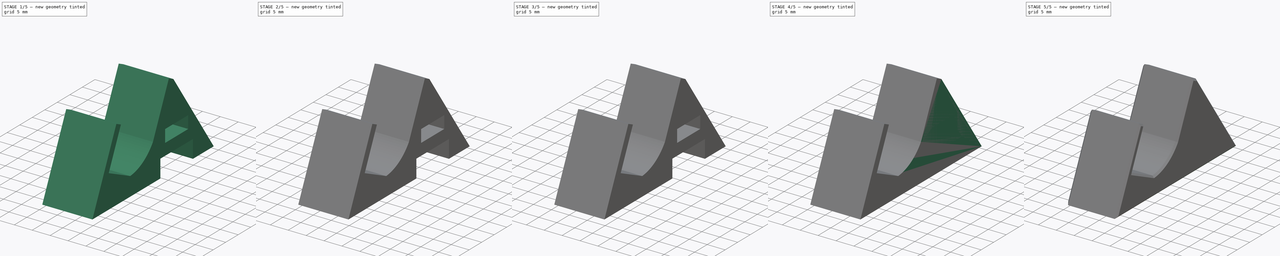
[diagram: build sequence overview — one tinted view per stage of 5, left to right]
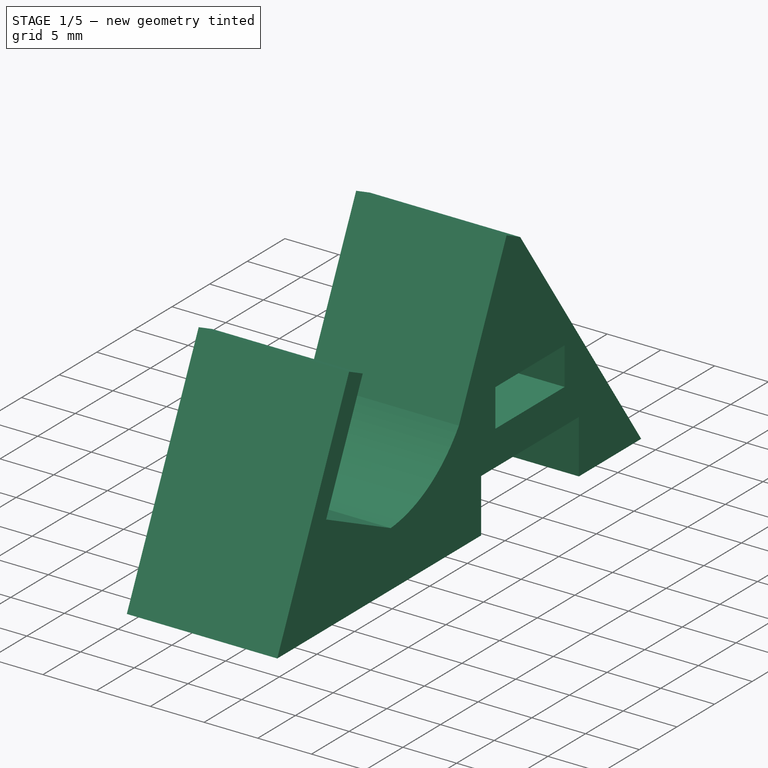
[diagram: stage 1 of 5 — iso view after this stage's code; geometry added in this stage tinted green]
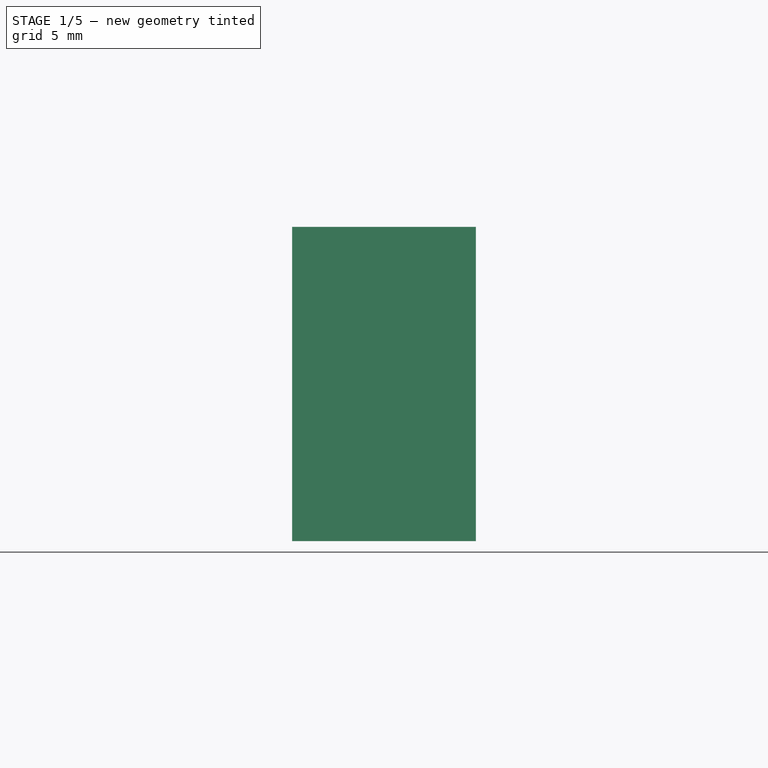
[diagram: stage 1 of 5 — front view after this stage's code; geometry added in this stage tinted green]
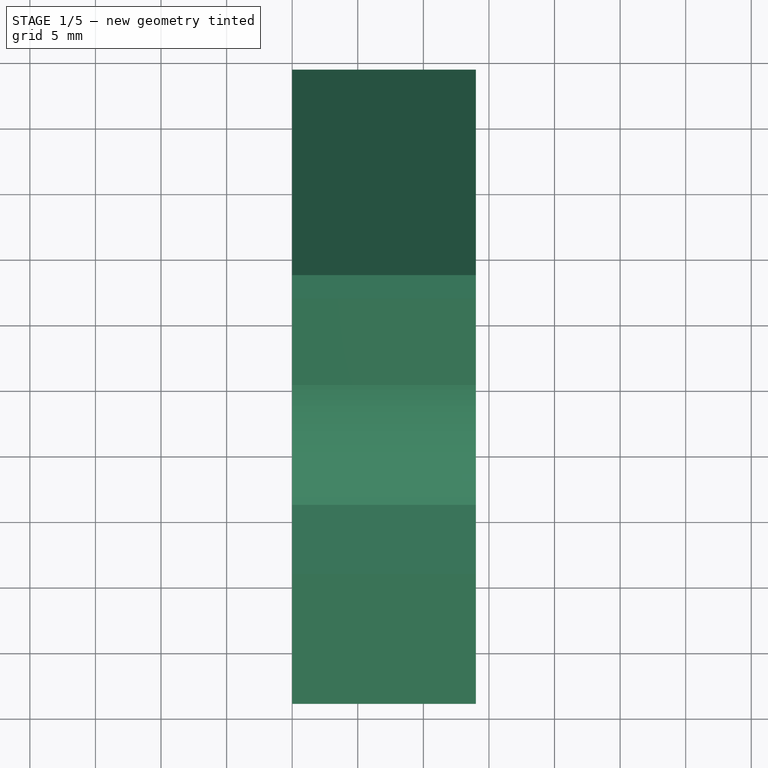
[diagram: stage 1 of 5 — top view after this stage's code; geometry added in this stage tinted green]
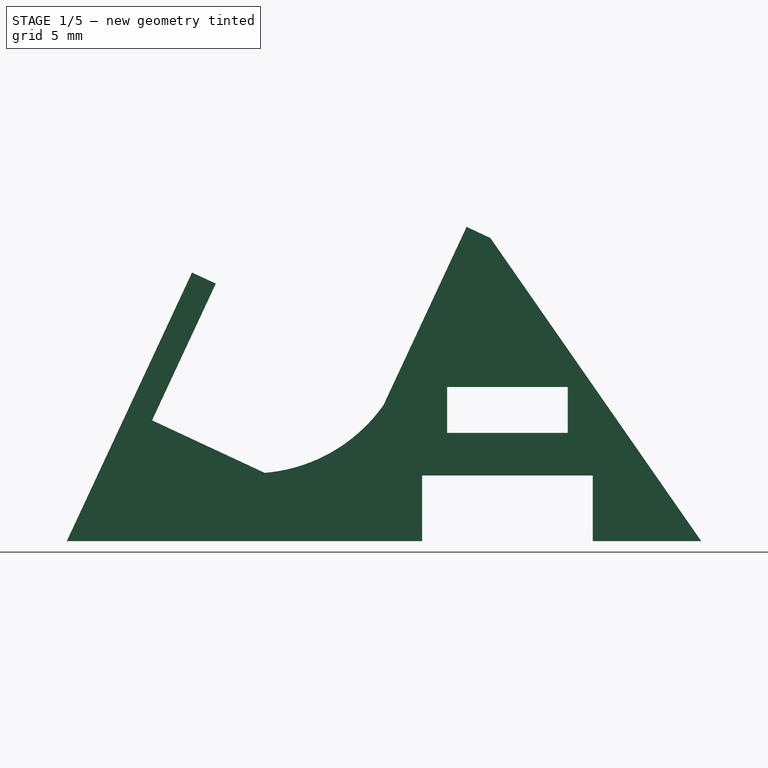
[diagram: stage 1 of 5 — right view after this stage's code; geometry added in this stage tinted green]
FCSTD DOCUMENT  (FreeCAD 1.0R39285 (Git))
Label: Vita 2K Kit
License: All rights reserved
LicenseURL: http://en.wikipedia.org/wiki/All_rights_reserved
objects: Sketcher::SketchObject×10, PartDesign::Pad×7, PartDesign::Pocket×6, PartDesign::Body×4, Part::Part2DObjectPython×3, PartDesign::FeatureBase×3, PartDesign::Fillet×3, PartDesign::Chamfer×3, App::Part×1
note: 90 computed .brp shape members not serialized (recipe doc carries the construction recipe); baked Part::Feature solids carry a one-line shape summary decoded from their .brp

FEATURE [Sketcher::SketchObject] Sketch
  ArcFitTolerance = 0
  AttachmentSupport = -> [YZ_Plane001]
  FullyConstrained = true
  MakeInternals = false
  MapMode = 5
  Placement = pos=(0,0,0) rot=(0.57735,0.57735,0.57735;2.0944rad)
  sketch-geometry (12):
    g0: LineSegment StartX=0 StartY=0 StartZ=0 EndX=0 EndY=13.5 EndZ=0
    g1: LineSegment StartX=0 StartY=13.5 StartZ=0 EndX=2 EndY=13.5 EndZ=0
    g2: LineSegment StartX=2 StartY=13.5 StartZ=0 EndX=2 EndY=2 EndZ=0
    g3: LineSegment [constr] StartX=2 StartY=2 StartZ=0 EndX=17.5 EndY=2 EndZ=0
    g4: LineSegment [constr] StartX=17.5 StartY=2 StartZ=0 EndX=17.5 EndY=25.5 EndZ=0
    g5: LineSegment StartX=17.5 StartY=25.5 StartZ=0 EndX=19.5 EndY=25.5 EndZ=0
    g6: LineSegment StartX=19.5 StartY=25.5 StartZ=0 EndX=19.5 EndY=0 EndZ=0
    g7: LineSegment StartX=19.5 StartY=0 StartZ=0 EndX=0 EndY=0 EndZ=0
    g8: LineSegment [constr] StartX=2 StartY=2 StartZ=0 EndX=2 EndY=0 EndZ=0
    g9: LineSegment StartX=2 StartY=2 StartZ=0 EndX=11.475 EndY=2 EndZ=0
    g10: LineSegment StartX=17.5 StartY=25.5 StartZ=0 EndX=17.5 EndY=10.5 EndZ=0
    g11: ArcOfCircle CenterX=5.36295 CenterY=12.7177 CenterZ=0 NormalX=0 NormalY=0 NormalZ=1 AngleXU=0 Radius=12.338 StartAngle=5.23067 EndAngle=6.10246
  constraints (35):
    c: Coincident(g0,g-1)
    c: PointOnObject(g0,g-2)
    c: Coincident(g1,g0)
    c: Horizontal(g1)
    c: Coincident(g2,g1)
    c: Vertical(g2)
    c: Coincident(g3,g2)
    c: Horizontal(g3)
    c: Coincident(g4,g3)
    c: Vertical(g4)
    c: Coincident(g5,g4)
    c: Horizontal(g5)
    c: Coincident(g6,g5)
    c: PointOnObject(g6,g-1)
    c: Vertical(g6)
    c: Coincident(g7,g6)
    c: Coincident(g7,g0)
    c: Coincident(g8,g2)
    c: PointOnObject(g8,g7)
    c: Vertical(g8)
    c: Equal(g1,g8)
    c: Equal(g8,g5)
    c: Distance(g1) = 2
    c: Distance(g2) = 11.5
    c: Distance(g4) = 23.5
    c: Distance(g3) = 15.5
    c: Coincident(g9,g2)
    c: PointOnObject(g9,g3)
    c: Coincident(g10,g5)
    c: PointOnObject(g10,g4)
    c: Coincident(g11,g9)
    c: Coincident(g11,g10)
    c: Distance(g9) = 9.475
    c: Distance(g10) = 15
    c: Radius(g11) = 12.338
FEATURE [PartDesign::Pad] Pad
  Direction = (1,0,0)
  Length = 14
  Length2 = 10
  Placement = pos=(0,0,0) rot=(0.57735,0.57735,0.57735;2.0944rad)
  Profile = -> Sketch
  ReferenceAxis = -> Sketch [N_Axis]
  Suppressed = false
  Type = 0
FEATURE [Part::Part2DObjectPython] ShapeString  label="V2K"  # Draft 2D object (typed FeaturePython)
  FontFile = <path> Bit Git Repro/16BitVirtualStudiosDesigns/Font/OpenSans-Regular.ttf
  Fuse = false
  Justification = 6
  JustificationReference = 0
  KeepLeftMargin = true
  MakeFace = true
  ObliqueAngle = 0
  Placement = pos=(10.89,7,6.19) rot=(0,0.707107,0.707107;3.14159rad)
  ScaleToSize = false
  Size = 4
  String = V2K
  Tracking = 0
FEATURE [Part::Part2DObjectPython] ShapeString001  label="L"  # Draft 2D object (typed FeaturePython)
  FontFile = <path> Bit Git Repro/16BitVirtualStudiosDesigns/Font/OpenSans-Regular.ttf
  Fuse = false
  Justification = 6
  JustificationReference = 0
  KeepLeftMargin = true
  MakeFace = true
  ObliqueAngle = 0
  Placement = pos=(53.72,6.03,-14) rot=(1,0,0;3.14159rad)
  ScaleToSize = false
  Size = 10
  String = L
  Tracking = 0
FEATURE [Part::Part2DObjectPython] ShapeString002  label="R"  # Draft 2D object (typed FeaturePython)
  FontFile = <path> Bit Git Repro/16BitVirtualStudiosDesigns/Font/OpenSans-Regular.ttf
  Fuse = false
  Justification = 6
  JustificationReference = 0
  KeepLeftMargin = true
  MakeFace = true
  ObliqueAngle = 0
  Placement = pos=(53.15,6.03,-16) rot=(1,0,0;3.14159rad)
  ScaleToSize = false
  Size = 10
  String = R
  Tracking = 0
FEATURE [Sketcher::SketchObject] Sketch001  label="Vita In"
  ArcFitTolerance = 0
  FullyConstrained = false
  MakeInternals = false
  Placement = pos=(62,16.69,-7) rot=(0,0,1;3.14159rad)
  sketch-geometry (22):
    g0: BSplineCurve PolesCount=3 KnotsCount=2 Degree=2 IsPeriodic=0
    g1: BSplineCurve PolesCount=2 KnotsCount=2 Degree=1 IsPeriodic=0
    g2: BSplineCurve PolesCount=3 KnotsCount=2 Degree=2 IsPeriodic=0
    g3: BSplineCurve PolesCount=2 KnotsCount=2 Degree=1 IsPeriodic=0
    g4: BSplineCurve PolesCount=3 KnotsCount=2 Degree=2 IsPeriodic=0
    g5: BSplineCurve PolesCount=3 KnotsCount=2 Degree=2 IsPeriodic=0
    g6: BSplineCurve PolesCount=2 KnotsCount=2 Degree=1 IsPeriodic=0
    g7: BSplineCurve PolesCount=3 KnotsCount=2 Degree=2 IsPeriodic=0
    g8: BSplineCurve PolesCount=3 KnotsCount=2 Degree=2 IsPeriodic=0
    g9: BSplineCurve PolesCount=2 KnotsCount=2 Degree=1 IsPeriodic=0
    g10: BSplineCurve PolesCount=3 KnotsCount=2 Degree=2 IsPeriodic=0
    g11: BSplineCurve PolesCount=2 KnotsCount=2 Degree=1 IsPeriodic=0
    g12: BSplineCurve PolesCount=3 KnotsCount=2 Degree=2 IsPeriodic=0
    g13: BSplineCurve PolesCount=3 KnotsCount=2 Degree=2 IsPeriodic=0
    g14: BSplineCurve PolesCount=2 KnotsCount=2 Degree=1 IsPeriodic=0
    g15: BSplineCurve PolesCount=3 KnotsCount=2 Degree=2 IsPeriodic=0
    g16: BSplineCurve PolesCount=7 KnotsCount=4 Degree=2 IsPeriodic=0
    g17: BSplineCurve PolesCount=7 KnotsCount=4 Degree=2 IsPeriodic=0
    g18: BSplineCurve PolesCount=2 KnotsCount=2 Degree=1 IsPeriodic=0
    g19: BSplineCurve PolesCount=2 KnotsCount=2 Degree=1 IsPeriodic=0
    g20: BSplineCurve PolesCount=2 KnotsCount=2 Degree=1 IsPeriodic=0
    g21: BSplineCurve PolesCount=2 KnotsCount=2 Degree=1 IsPeriodic=0
  constraints (20):
    c: Coincident(g0,g1)
    c: Coincident(g1,g2)
    c: Coincident(g2,g3)
    c: Coincident(g3,g4)
    c: Coincident(g4,g5)
    c: Coincident(g5,g6)
    c: Coincident(g6,g7)
    c: Coincident(g7,g8)
    c: Coincident(g8,g9)
    c: Coincident(g9,g10)
    c: Coincident(g10,g11)
    c: Coincident(g11,g12)
    c: Coincident(g12,g13)
    c: Coincident(g13,g14)
    c: Coincident(g14,g15)
    c: Coincident(g15,g0)
    c: Coincident(g18,g19)
    c: Coincident(g19,g20)
    c: Coincident(g20,g21)
    c: Coincident(g21,g18)
FEATURE [Sketcher::SketchObject] Sketch002  label="Vita Out"
  ArcFitTolerance = 0
  FullyConstrained = false
  MakeInternals = false
  Placement = pos=(62,16.69,-15) rot=(0,0,1;3.14159rad)
  sketch-geometry (4):
    g0: BSplineCurve PolesCount=2 KnotsCount=2 Degree=1 IsPeriodic=0
    g1: BSplineCurve PolesCount=5 KnotsCount=3 Degree=2 IsPeriodic=0
    g2: BSplineCurve PolesCount=2 KnotsCount=2 Degree=1 IsPeriodic=0
    g3: BSplineCurve PolesCount=5 KnotsCount=3 Degree=2 IsPeriodic=0
  constraints (4):
    c: Coincident(g0,g1)
    c: Coincident(g1,g2)
    c: Coincident(g2,g3)
    c: Coincident(g3,g0)
FEATURE [PartDesign::Pocket] Pocket
  BaseFeature = -> Pad
  Direction = (-1e-16,-1,2e-16)
  Length = 0
  Length2 = 5
  Offset = 0.2
  Placement = pos=(0,0,0) rot=(0.57735,0.57735,0.57735;2.0944rad)
  Profile = -> ShapeString
  ReferenceAxis = -> ShapeString [N_Axis]
  Refine = true
  Suppressed = false
  Type = 3
  UpToFace = -> Pad [Face6]
FEATURE [PartDesign::Body] Body  label="Profile"
  AllowCompound = false
  Group = -> [Sketch,Pad,ShapeString,Pocket]
  Origin = -> Origin001
  Tip = -> Pocket
FEATURE [PartDesign::FeatureBase] Clone
  BaseFeature = -> Body
  Placement = pos=(50,0,0) rot=(-1,0,0;0.436332rad)
  Suppressed = false
FEATURE [Sketcher::SketchObject] Sketch003
  ArcFitTolerance = 0
  AttachmentSupport = -> [Clone]
  ExternalGeometry = -> [Clone]
  FullyConstrained = true
  MakeInternals = false
  MapMode = 5
  Placement = pos=(64,-1.26e-14,2.4e-15) rot=(0.473306,0.742942,0.473306;1.86366rad)
  sketch-geometry (19):
    g0: LineSegment StartX=19.5 StartY=25.5 StartZ=0 EndX=19.5 EndY=2 EndZ=0
    g1: LineSegment StartX=19.5 StartY=2 StartZ=0 EndX=7.1e-15 EndY=2 EndZ=0
    g2: LineSegment StartX=7.1e-15 StartY=2 StartZ=0 EndX=0 EndY=-9.093 EndZ=0
    g3: LineSegment StartX=0 StartY=-9.093 StartZ=0 EndX=24.5564 EndY=2.35784 EndZ=0
    g4: LineSegment StartX=24.5564 StartY=2.35784 StartZ=0 EndX=22.4433 EndY=6.88937 EndZ=0
    g5: LineSegment StartX=22.4433 StartY=6.88937 StartZ=0 EndX=34.2253 EndY=12.3834 EndZ=0
    g6: LineSegment StartX=34.2253 StartY=12.3834 StartZ=0 EndX=36.3384 EndY=7.85187 EndZ=0
    g7: LineSegment StartX=36.3384 StartY=7.85187 StartZ=0 EndX=43.8363 EndY=11.3482 EndZ=0
    g8: LineSegment StartX=43.8363 StartY=11.3482 StartZ=0 EndX=19.5 EndY=25.5 EndZ=0
    g9: LineSegment StartX=22.7918 StartY=10.6378 StartZ=0 EndX=31.1298 EndY=14.5259 EndZ=0
    g10: LineSegment StartX=31.1298 StartY=14.5259 StartZ=0 EndX=29.6506 EndY=17.698 EndZ=0
    g11: LineSegment StartX=29.6506 StartY=17.698 StartZ=0 EndX=21.3126 EndY=13.8099 EndZ=0
    g12: LineSegment StartX=21.3126 StartY=13.8099 StartZ=0 EndX=22.7918 EndY=10.6378 EndZ=0
    g13: LineSegment [constr] StartX=24.5564 StartY=2.35784 StartZ=0 EndX=36.3384 EndY=7.85187 EndZ=0
    g14: LineSegment [constr] StartX=22.4433 StartY=6.88937 StartZ=0 EndX=19.5 EndY=5.51689 EndZ=0
    g15: LineSegment [constr] StartX=34.2253 StartY=12.3834 StartZ=0 EndX=38.5712 EndY=14.4099 EndZ=0
    g16: LineSegment [constr] StartX=26.9608 StartY=12.5819 StartZ=0 EndX=28.3343 EndY=9.63639 EndZ=0
    g17: LineSegment [constr] StartX=29.6506 StartY=17.698 StartZ=0 EndX=31.4633 EndY=18.5433 EndZ=0
    g18: LineSegment [constr] StartX=21.3126 StartY=13.8099 StartZ=0 EndX=19.5 EndY=12.9647 EndZ=0
  constraints (54):
    c: Coincident(g-4,g0)
    c: PointOnObject(g0,g-4)
    c: Coincident(g0,g1)
    c: PointOnObject(g1,g-5)
    c: Horizontal(g1)
    c: Coincident(g1,g2)
    c: PointOnObject(g2,g-2)
    c: Coincident(g2,g3)
    c: Coincident(g3,g4)
    c: Coincident(g4,g5)
    c: Coincident(g5,g6)
    c: Coincident(g6,g7)
    c: Coincident(g7,g8)
    c: Coincident(g8,g0)
    c: Coincident(g9,g10)
    c: Coincident(g10,g11)
    c: Coincident(g11,g12)
    c: Coincident(g12,g9)
    c: Parallel(g11,g9)
    c: Parallel(g9,g5)
    c: Parallel(g5,g7)
    c: Parallel(g5,g3)
    c: Perpendicular(g3,g4)
    c: Perpendicular(g7,g6)
    c: Perpendicular(g9,g10)
    c: Perpendicular(g9,g12)
    c: PointOnObject(g-3,g1)
    c: PointOnObject(g-4,g3)
    c: Angle(g3,g2) = 1.13446
    c: Coincident(g13,g3)
    c: Coincident(g13,g6)
    c: Parallel(g13,g3)
    c: Coincident(g14,g4)
    c: PointOnObject(g14,g0)
    c: Coincident(g15,g5)
    c: PointOnObject(g15,g8)
    c: Coincident(g17,g10)
    c: Coincident(g18,g11)
    c: PointOnObject(g18,g0)
    c: PointOnObject(g17,g8)
    c: Parallel(g17,g11)
    c: Parallel(g14,g5)
    c: Parallel(g5,g15)
    c: Parallel(g11,g18)
    c: Equal(g17,g18)
    c: Symmetric(g9,g9,g16)
    c: Symmetric(g5,g4,g16)
    c: Perpendicular(g5,g16)
    c: Distance(g5) = 13
    c: Distance(g6) = 5
    c: Distance(g16) = 3.25
    c: Distance(g10) = 3.5
    c: Distance(g11) = 9.2
    c: Distance(g17) = 2
FEATURE [PartDesign::Pad] Pad001
  BaseFeature = -> Clone
  Direction = (1,-1e-16,-1e-16)
  Length = 14
  Length2 = 10
  Placement = pos=(50,0,0) rot=(-1,0,0;0.436332rad)
  Profile = -> Sketch003
  ReferenceAxis = -> Sketch003 [N_Axis]
  Refine = true
  Reversed = true
  Suppressed = false
  Type = 0
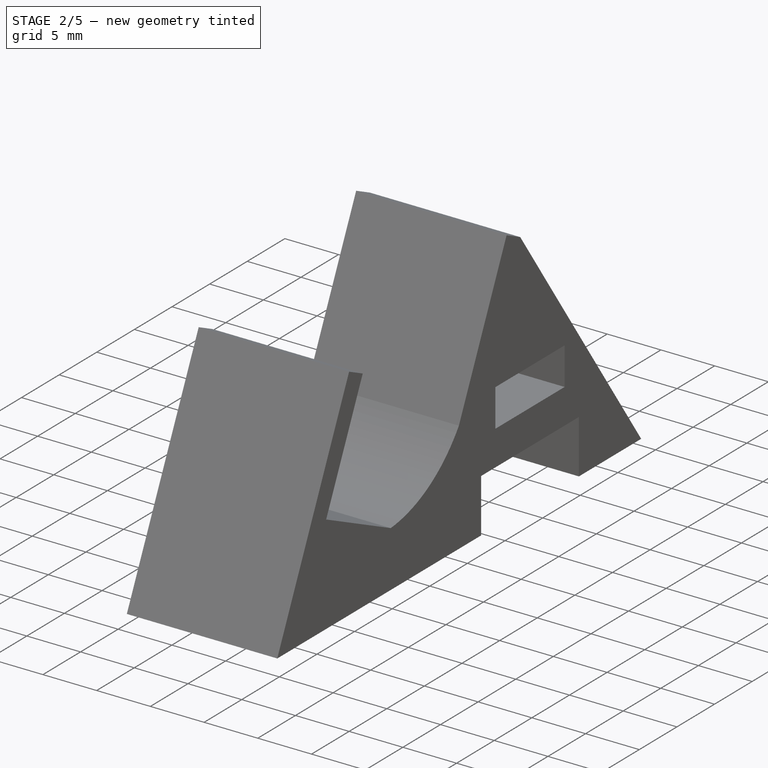
[diagram: stage 2 of 5 — iso view after this stage's code; geometry added in this stage tinted green]
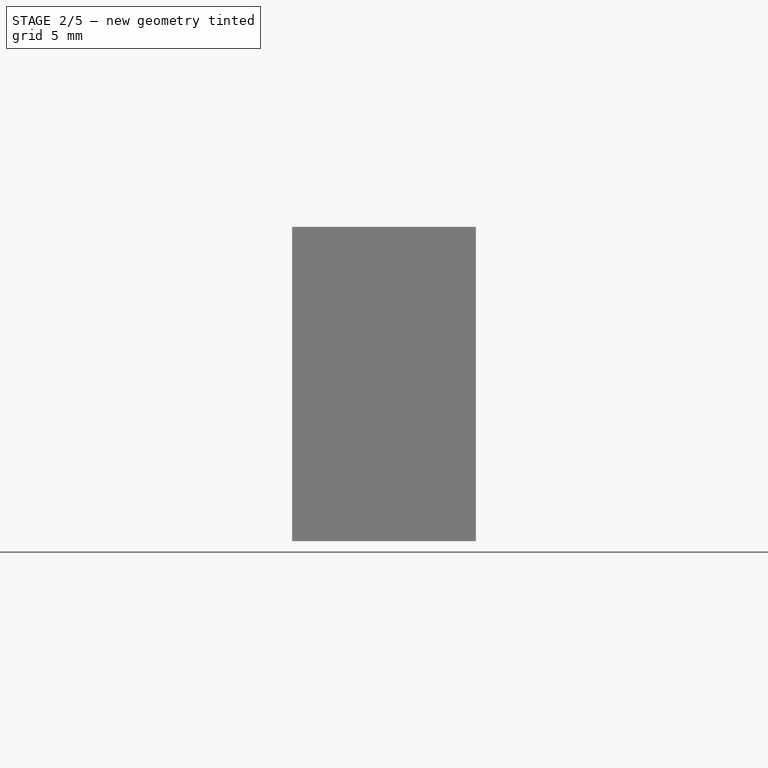
[diagram: stage 2 of 5 — front view after this stage's code; geometry added in this stage tinted green]
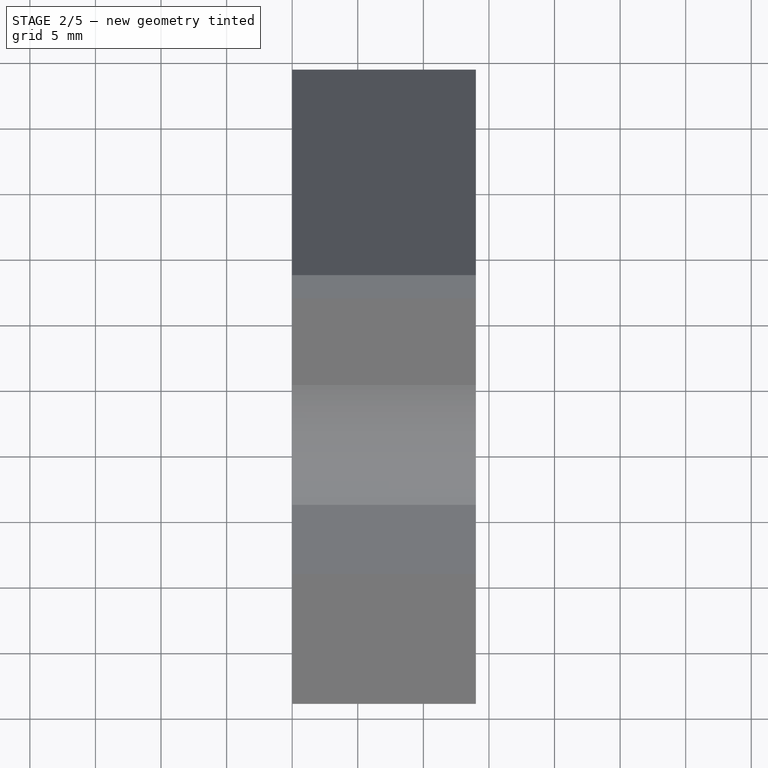
[diagram: stage 2 of 5 — top view after this stage's code; geometry added in this stage tinted green]
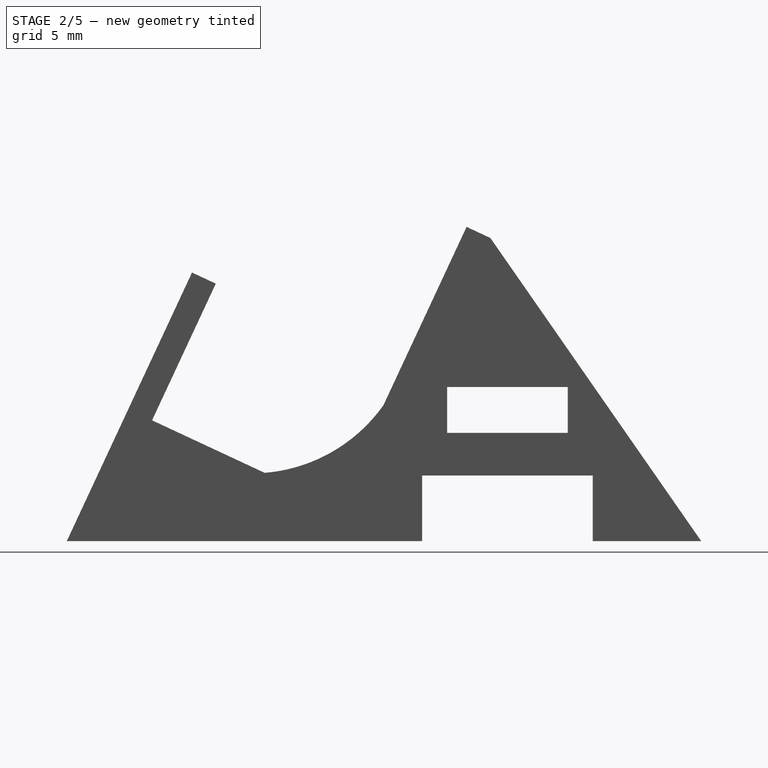
[diagram: stage 2 of 5 — right view after this stage's code; geometry added in this stage tinted green]
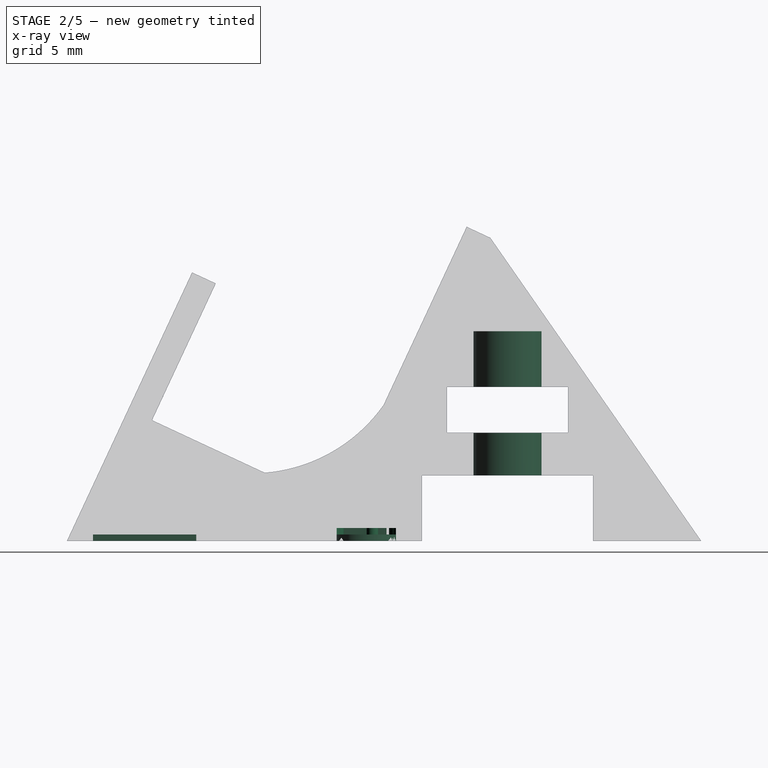
[diagram: stage 2 of 5 — x-ray composite at the right view; earlier geometry ghosted, this stage's added geometry solid]
FEATURE [Sketcher::SketchObject] Sketch004  label="Vita Out001"
  ArcFitTolerance = 0
  FullyConstrained = false
  MakeInternals = false
  Placement = pos=(62,37.96,-11) rot=(0,0,1;3.14159rad)
  sketch-geometry (4):
    g0: BSplineCurve PolesCount=2 KnotsCount=2 Degree=1 IsPeriodic=0
    g1: BSplineCurve PolesCount=5 KnotsCount=3 Degree=2 IsPeriodic=0
    g2: BSplineCurve PolesCount=2 KnotsCount=2 Degree=1 IsPeriodic=0
    g3: BSplineCurve PolesCount=5 KnotsCount=3 Degree=2 IsPeriodic=0
  constraints (4):
    c: Coincident(g0,g1)
    c: Coincident(g1,g2)
    c: Coincident(g2,g3)
    c: Coincident(g3,g0)
FEATURE [Sketcher::SketchObject] Sketch005  label="Vita In001"
  ArcFitTolerance = 0
  FullyConstrained = false
  MakeInternals = false
  Placement = pos=(62,37.96,-7) rot=(0,0,1;3.14159rad)
  sketch-geometry (22):
    g0: BSplineCurve PolesCount=3 KnotsCount=2 Degree=2 IsPeriodic=0
    g1: BSplineCurve PolesCount=2 KnotsCount=2 Degree=1 IsPeriodic=0
    g2: BSplineCurve PolesCount=3 KnotsCount=2 Degree=2 IsPeriodic=0
    g3: BSplineCurve PolesCount=2 KnotsCount=2 Degree=1 IsPeriodic=0
    g4: BSplineCurve PolesCount=3 KnotsCount=2 Degree=2 IsPeriodic=0
    g5: BSplineCurve PolesCount=3 KnotsCount=2 Degree=2 IsPeriodic=0
    g6: BSplineCurve PolesCount=2 KnotsCount=2 Degree=1 IsPeriodic=0
    g7: BSplineCurve PolesCount=3 KnotsCount=2 Degree=2 IsPeriodic=0
    g8: BSplineCurve PolesCount=3 KnotsCount=2 Degree=2 IsPeriodic=0
    g9: BSplineCurve PolesCount=2 KnotsCount=2 Degree=1 IsPeriodic=0
    g10: BSplineCurve PolesCount=3 KnotsCount=2 Degree=2 IsPeriodic=0
    g11: BSplineCurve PolesCount=2 KnotsCount=2 Degree=1 IsPeriodic=0
    g12: BSplineCurve PolesCount=3 KnotsCount=2 Degree=2 IsPeriodic=0
    g13: BSplineCurve PolesCount=3 KnotsCount=2 Degree=2 IsPeriodic=0
    g14: BSplineCurve PolesCount=2 KnotsCount=2 Degree=1 IsPeriodic=0
    g15: BSplineCurve PolesCount=3 KnotsCount=2 Degree=2 IsPeriodic=0
    g16: BSplineCurve PolesCount=7 KnotsCount=4 Degree=2 IsPeriodic=0
    g17: BSplineCurve PolesCount=7 KnotsCount=4 Degree=2 IsPeriodic=0
    g18: BSplineCurve PolesCount=2 KnotsCount=2 Degree=1 IsPeriodic=0
    g19: BSplineCurve PolesCount=2 KnotsCount=2 Degree=1 IsPeriodic=0
    g20: BSplineCurve PolesCount=2 KnotsCount=2 Degree=1 IsPeriodic=0
    g21: BSplineCurve PolesCount=2 KnotsCount=2 Degree=1 IsPeriodic=0
  constraints (20):
    c: Coincident(g0,g1)
    c: Coincident(g1,g2)
    c: Coincident(g2,g3)
    c: Coincident(g3,g4)
    c: Coincident(g4,g5)
    c: Coincident(g5,g6)
    c: Coincident(g6,g7)
    c: Coincident(g7,g8)
    c: Coincident(g8,g9)
    c: Coincident(g9,g10)
    c: Coincident(g10,g11)
    c: Coincident(g11,g12)
    c: Coincident(g12,g13)
    c: Coincident(g13,g14)
    c: Coincident(g14,g15)
    c: Coincident(g15,g0)
    c: Coincident(g18,g19)
    c: Coincident(g19,g20)
    c: Coincident(g20,g21)
    c: Coincident(g21,g18)
FEATURE [PartDesign::FeatureBase] Clone001
  BaseFeature = -> Pad001
  Placement = pos=(50,0,0) rot=(-1,0,0;0.436332rad)
  Suppressed = false
FEATURE [PartDesign::Body] Body001  label="Stand"
  AllowCompound = false
  Group = -> [Clone,Sketch003,Pad001,Sketch004,Sketch005,Sketch006,Pad002,Pocket001,Pad003,Fillet,Chamfer]
  Origin = -> Origin002
  Tip = -> Chamfer
FEATURE [Sketcher::SketchObject] Sketch007
  ArcFitTolerance = 0
  AttachmentSupport = -> [Clone001]
  ExternalGeometry = -> [Clone001]
  FullyConstrained = true
  MakeInternals = false
  MapMode = 5
  Placement = pos=(50,-2.2e-15,-3.24106) rot=(1,0,0;3.14159rad)
  sketch-geometry (1):
    g0: Circle CenterX=7 CenterY=-29.7521 CenterZ=0 NormalX=0 NormalY=0 NormalZ=1 AngleXU=0 Radius=2.6
  constraints (2):
    c: Symmetric(g-3,g-4,g0)
    c: Diameter(g0) = 5.2
FEATURE [PartDesign::Pocket] Pocket002
  BaseFeature = -> Clone001
  Direction = (0,0,1)
  Length = 11
  Length2 = 5
  Placement = pos=(50,0,0) rot=(-1,0,0;0.436332rad)
  Profile = -> Sketch007
  ReferenceAxis = -> Sketch007 [N_Axis]
  Suppressed = false
  Type = 0
FEATURE [PartDesign::Pocket] Pocket003
  BaseFeature = -> Pocket002
  Direction = (0,0,-1)
  Length = 0
  Length2 = 5
  Offset = 1
  Placement = pos=(50,0,0) rot=(-1,0,0;0.436332rad)
  Profile = -> Sketch002
  ReferenceAxis = -> Sketch002 [N_Axis]
  Reversed = true
  Suppressed = false
  Type = 3
  UpToFace = -> Pocket002 [Face11]
FEATURE [PartDesign::Pad] Pad004
  BaseFeature = -> Pocket003
  Direction = (0,0,1)
  Length = 0.5
  Length2 = 10
  Offset = 0.5
  Placement = pos=(50,0,0) rot=(-1,0,0;0.436332rad)
  Profile = -> Sketch001
  ReferenceAxis = -> Sketch001 [N_Axis]
  Refine = true
  Reversed = true
  Suppressed = false
  Type = 3
  UpToFace = -> Pocket003 [Face77]
FEATURE [PartDesign::Pocket] Pocket004
  BaseFeature = -> Pad004
  Direction = (0,1e-16,1)
  Length = 0
  Length2 = 5
  Offset = 0.5
  Placement = pos=(50,0,0) rot=(-1,0,0;0.436332rad)
  Profile = -> ShapeString001
  ReferenceAxis = -> ShapeString001 [N_Axis]
  Suppressed = false
  Type = 3
  UpToFace = -> Pad004 [Face11]
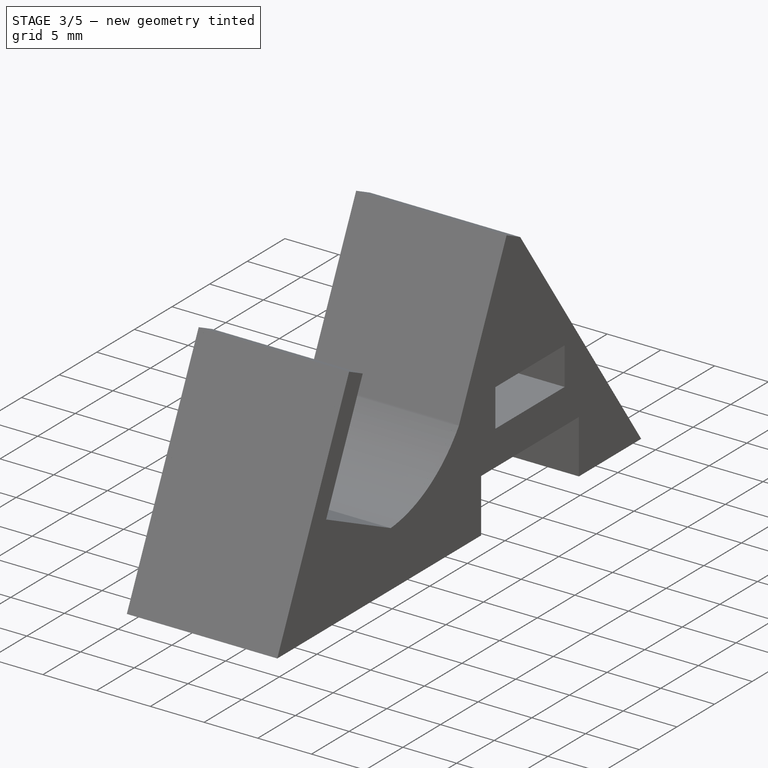
[diagram: stage 3 of 5 — iso view after this stage's code; geometry added in this stage tinted green]
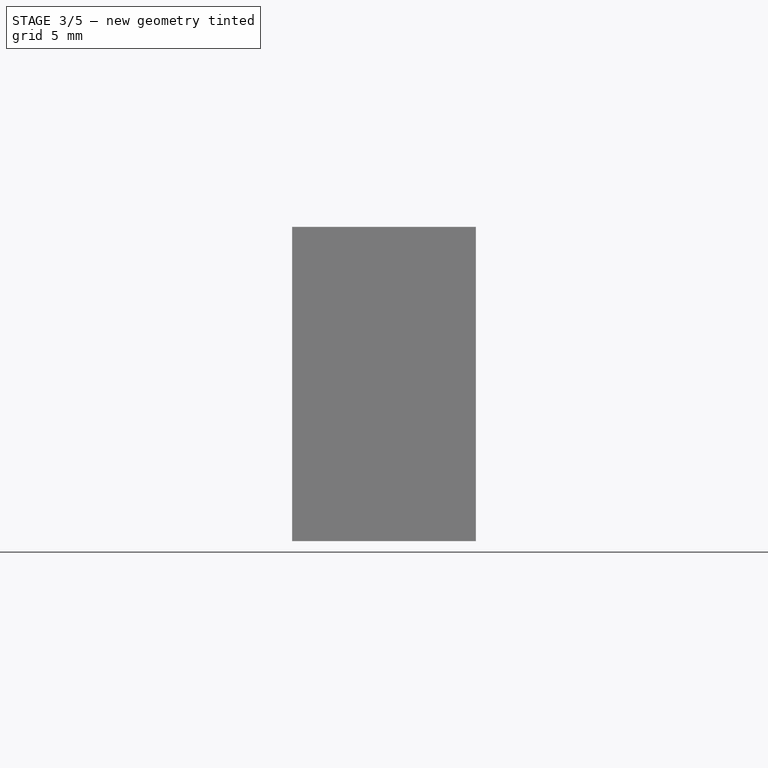
[diagram: stage 3 of 5 — front view after this stage's code; geometry added in this stage tinted green]
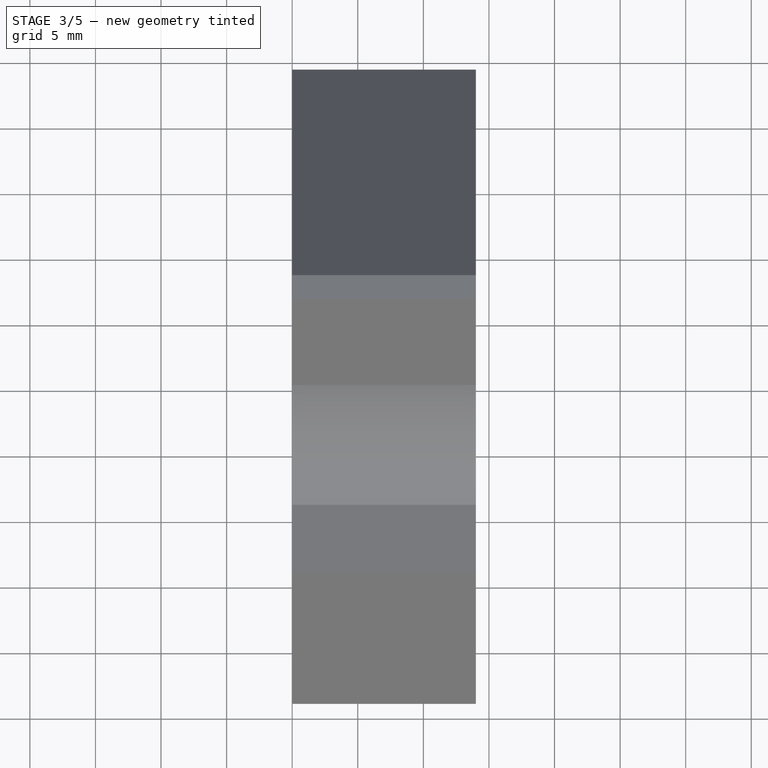
[diagram: stage 3 of 5 — top view after this stage's code; geometry added in this stage tinted green]
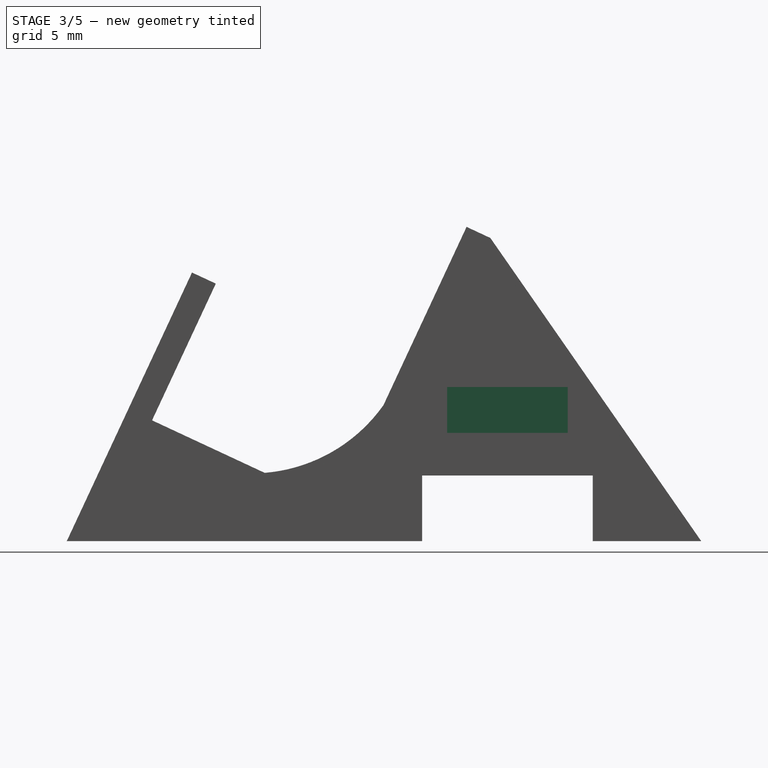
[diagram: stage 3 of 5 — right view after this stage's code; geometry added in this stage tinted green]
FEATURE [PartDesign::FeatureBase] Clone002
  BaseFeature = -> Pad004
  Placement = pos=(50,0,0) rot=(-1,0,0;0.436332rad)
  Suppressed = false
FEATURE [PartDesign::Body] Body003  label="Kit Right"
  AllowCompound = false
  Group = -> [Clone002,ShapeString002,Pocket005,Sketch008,Pad005,Fillet001,Chamfer001]
  Origin = -> Origin004
  Placement = pos=(100,0,0) rot=(0,0,1;0rad)
  Tip = -> Chamfer001
FEATURE [Sketcher::SketchObject] Sketch009
  ArcFitTolerance = 0
  AttachmentSupport = -> [Pocket004]
  ExternalGeometry = -> [Pocket004]
  FullyConstrained = true
  MakeInternals = false
  MapMode = 5
  Placement = pos=(50,0,0) rot=(0.473306,-0.742942,-0.473306;1.86366rad)
  sketch-geometry (4):
    g0: LineSegment StartX=-29.6506 StartY=17.698 StartZ=0 EndX=-21.3126 EndY=13.8099 EndZ=0
    g1: LineSegment StartX=-21.3126 StartY=13.8099 StartZ=0 EndX=-22.7918 EndY=10.6378 EndZ=0
    g2: LineSegment StartX=-22.7918 StartY=10.6378 StartZ=0 EndX=-31.1298 EndY=14.5259 EndZ=0
    g3: LineSegment StartX=-31.1298 StartY=14.5259 StartZ=0 EndX=-29.6506 EndY=17.698 EndZ=0
  constraints (8):
    c: Coincident(g-3,g0)
    c: Coincident(g0,g-4)
    c: Coincident(g0,g1)
    c: Coincident(g1,g-4)
    c: Coincident(g1,g2)
    c: Coincident(g2,g-3)
    c: Coincident(g2,g3)
    c: Coincident(g3,g0)
FEATURE [PartDesign::Pad] Pad006
  BaseFeature = -> Pocket004
  Direction = (-1,-1e-16,-1e-16)
  Length = 2
  Length2 = 10
  Placement = pos=(50,0,0) rot=(-1,0,0;0.436332rad)
  Profile = -> Sketch009
  ReferenceAxis = -> Sketch009 [N_Axis]
  Refine = true
  Reversed = true
  Suppressed = false
  Type = 0
FEATURE [PartDesign::Fillet] Fillet002
  Base = -> Pad006 [Edge5]
  BaseFeature = -> Pad006
  Placement = pos=(50,0,0) rot=(-1,0,0;0.436332rad)
  Radius = 1
  SupportTransform = false
  Suppressed = false
  UseAllEdges = false
FEATURE [PartDesign::Chamfer] Chamfer002
  Angle = 45
  Base = -> Fillet002 [Face5,Face2]
  BaseFeature = -> Fillet002
  ChamferType = 0
  FlipDirection = false
  Placement = pos=(50,0,0) rot=(-1,0,0;0.436332rad)
  Size = 0.5
  Size2 = 1
  SupportTransform = false
  Suppressed = false
  UseAllEdges = false
FEATURE [PartDesign::Body] Body002  label="Kit Left"
  AllowCompound = false
  Group = -> [Clone001,ShapeString001,Sketch001,Sketch002,Sketch007,Pocket002,Pocket003,Pad004,Pocket004,Sketch009,Pad006,Fillet002,Chamfer002]
  Origin = -> Origin003
  Placement = pos=(50,0,0) rot=(0,0,1;0rad)
  Tip = -> Chamfer002
FEATURE [App::Part] Part  label="Vita 2K-"
  Group = -> [Body,Body001,Body002,Body003]
  Origin = -> Origin
note: 3 file-system paths scrubbed to <path> (originals preserved in the JSON sidecar)
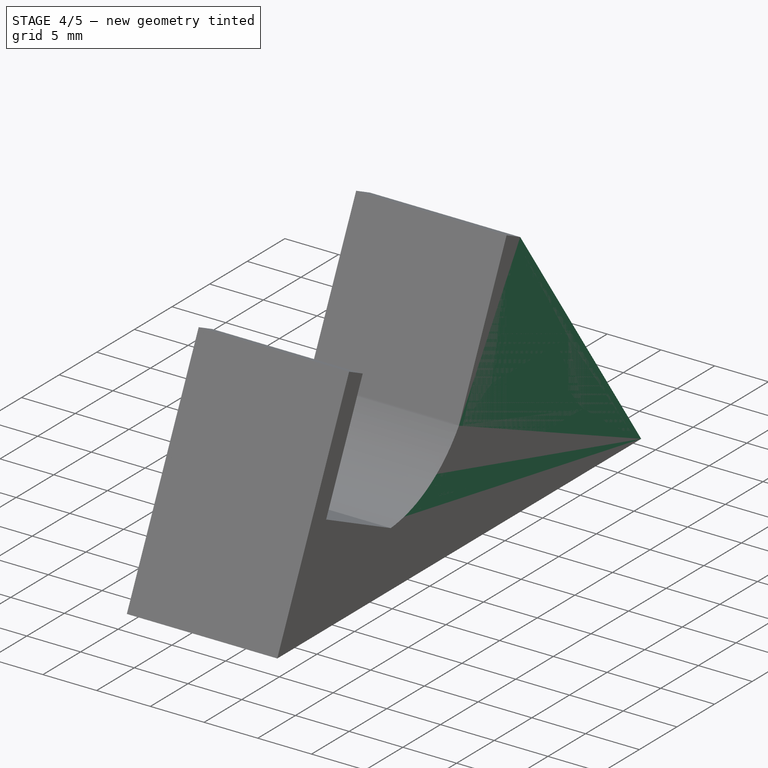
[diagram: stage 4 of 5 — iso view after this stage's code; geometry added in this stage tinted green]
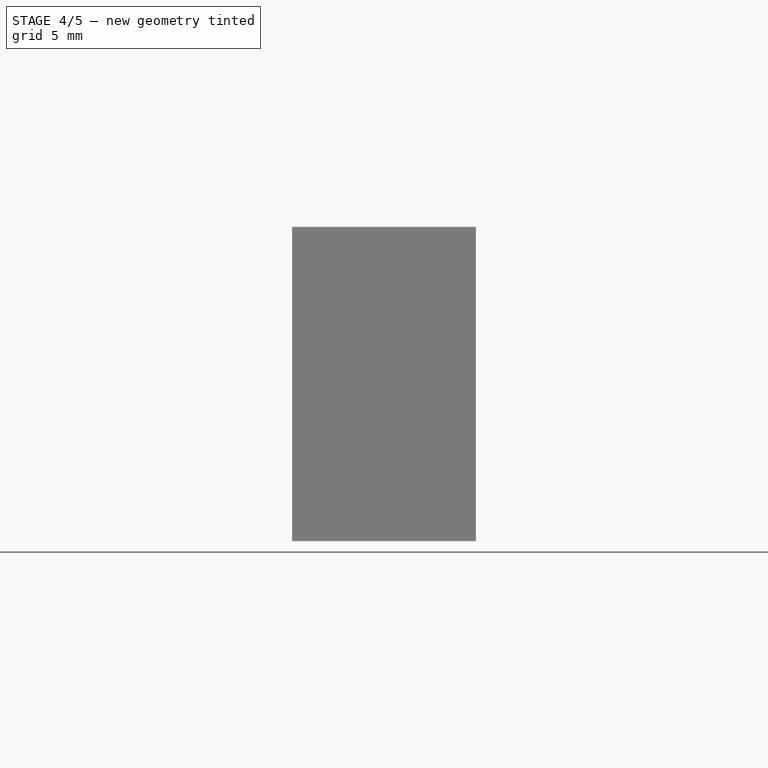
[diagram: stage 4 of 5 — front view after this stage's code; geometry added in this stage tinted green]
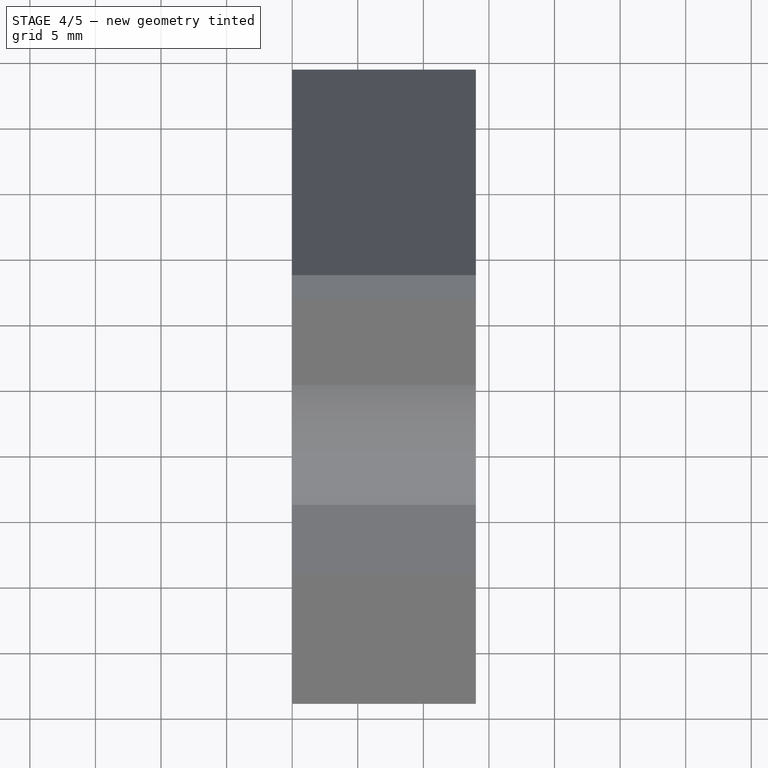
[diagram: stage 4 of 5 — top view after this stage's code; geometry added in this stage tinted green]
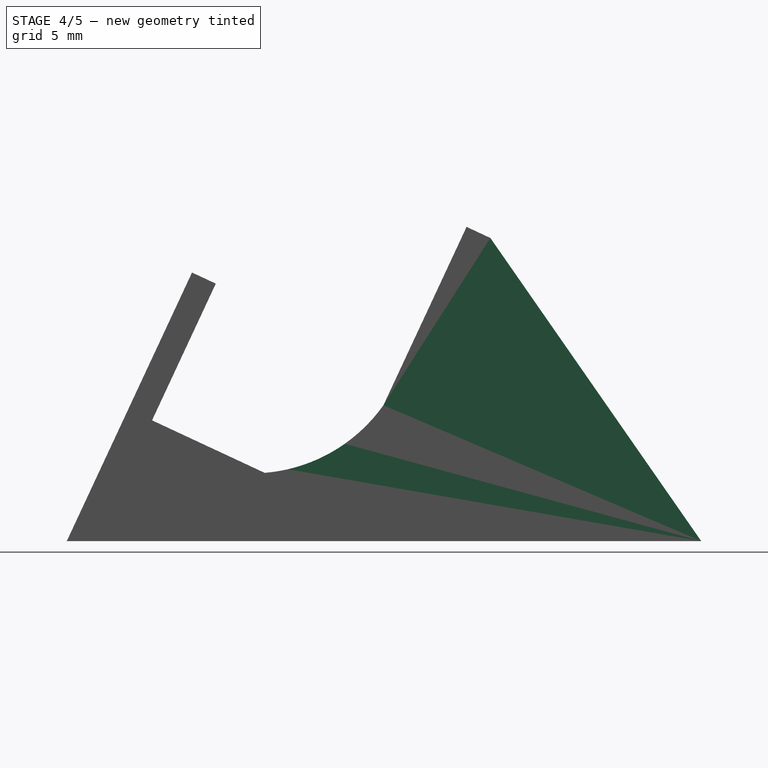
[diagram: stage 4 of 5 — right view after this stage's code; geometry added in this stage tinted green]
FEATURE [Sketcher::SketchObject] Sketch006
  ArcFitTolerance = 0
  AttachmentSupport = -> [Pad001]
  ExternalGeometry = -> [Pad001]
  FullyConstrained = true
  MakeInternals = false
  MapMode = 5
  Placement = pos=(50,0,0) rot=(0.473306,-0.742942,-0.473306;1.86366rad)
  sketch-geometry (8):
    g0: LineSegment StartX=-29.6506 StartY=17.698 StartZ=0 EndX=-21.3126 EndY=13.8099 EndZ=0
    g1: LineSegment StartX=-21.3126 StartY=13.8099 StartZ=0 EndX=-22.7918 EndY=10.6378 EndZ=0
    g2: LineSegment StartX=-22.7918 StartY=10.6378 StartZ=0 EndX=-31.1298 EndY=14.5259 EndZ=0
    g3: LineSegment StartX=-31.1298 StartY=14.5259 StartZ=0 EndX=-29.6506 EndY=17.698 EndZ=0
    g4: LineSegment StartX=-34.2253 StartY=12.3834 StartZ=0 EndX=-22.4433 EndY=6.88937 EndZ=0
    g5: LineSegment StartX=-22.4433 StartY=6.88937 StartZ=0 EndX=-24.5564 EndY=2.35784 EndZ=0
    g6: LineSegment StartX=-24.5564 StartY=2.35784 StartZ=0 EndX=-36.3384 EndY=7.85187 EndZ=0
    g7: LineSegment StartX=-36.3384 StartY=7.85187 StartZ=0 EndX=-34.2253 EndY=12.3834 EndZ=0
  constraints (16):
    c: Coincident(g-3,g0)
    c: Coincident(g0,g-4)
    c: Coincident(g0,g1)
    c: Coincident(g1,g-4)
    c: Coincident(g1,g2)
    c: Coincident(g2,g-3)
    c: Coincident(g2,g3)
    c: Coincident(g3,g0)
    c: Coincident(g-5,g4)
    c: Coincident(g4,g-6)
    c: Coincident(g4,g5)
    c: Coincident(g5,g-6)
    c: Coincident(g5,g6)
    c: Coincident(g6,g-5)
    c: Coincident(g6,g7)
    c: Coincident(g7,g4)
FEATURE [PartDesign::Pad] Pad002
  BaseFeature = -> Pad001
  Direction = (-1,-1e-16,-1e-16)
  Length = 14
  Length2 = 10
  Placement = pos=(50,0,0) rot=(-1,0,0;0.436332rad)
  Profile = -> Sketch006
  ReferenceAxis = -> Sketch006 [N_Axis]
  Refine = true
  Reversed = true
  Suppressed = false
  Type = 0
FEATURE [PartDesign::Pocket] Pocket005
  BaseFeature = -> Clone002
  Direction = (0,1e-16,1)
  Length = 0
  Length2 = 5
  Offset = 0.5
  Placement = pos=(50,0,0) rot=(-1,0,0;0.436332rad)
  Profile = -> ShapeString002
  ReferenceAxis = -> ShapeString002 [N_Axis]
  Suppressed = false
  Type = 3
  UpToFace = -> Clone002 [Face11]
FEATURE [Sketcher::SketchObject] Sketch008
  ArcFitTolerance = 0
  AttachmentSupport = -> [Pocket005]
  ExternalGeometry = -> [Pocket005]
  FullyConstrained = true
  MakeInternals = false
  MapMode = 5
  Placement = pos=(64,0,0) rot=(0.473306,0.742942,0.473306;1.86366rad)
  sketch-geometry (4):
    g0: LineSegment StartX=21.3126 StartY=13.8099 StartZ=0 EndX=29.6506 EndY=17.698 EndZ=0
    g1: LineSegment StartX=29.6506 StartY=17.698 StartZ=0 EndX=31.1298 EndY=14.5259 EndZ=0
    g2: LineSegment StartX=31.1298 StartY=14.5259 StartZ=0 EndX=22.7918 EndY=10.6378 EndZ=0
    g3: LineSegment StartX=22.7918 StartY=10.6378 StartZ=0 EndX=21.3126 EndY=13.8099 EndZ=0
  constraints (8):
    c: Coincident(g-3,g0)
    c: Coincident(g0,g-3)
    c: Coincident(g0,g1)
    c: Coincident(g1,g-4)
    c: Coincident(g1,g2)
    c: Coincident(g2,g-4)
    c: Coincident(g2,g3)
    c: Coincident(g3,g0)
FEATURE [PartDesign::Pad] Pad005
  BaseFeature = -> Pocket005
  Direction = (1,-1e-16,-1e-16)
  Length = 2
  Length2 = 10
  Placement = pos=(50,0,0) rot=(-1,0,0;0.436332rad)
  Profile = -> Sketch008
  ReferenceAxis = -> Sketch008 [N_Axis]
  Refine = true
  Reversed = true
  Suppressed = false
  Type = 0
FEATURE [PartDesign::Fillet] Fillet001
  Base = -> Pad005 [Edge5]
  BaseFeature = -> Pad005
  Placement = pos=(50,0,0) rot=(-1,0,0;0.436332rad)
  Radius = 1
  SupportTransform = false
  Suppressed = false
  UseAllEdges = false
FEATURE [PartDesign::Chamfer] Chamfer001
  Angle = 45
  Base = -> Fillet001 [Face5,Face2]
  BaseFeature = -> Fillet001
  ChamferType = 0
  FlipDirection = false
  Placement = pos=(50,0,0) rot=(-1,0,0;0.436332rad)
  Size = 0.5
  Size2 = 1
  SupportTransform = false
  Suppressed = false
  UseAllEdges = false
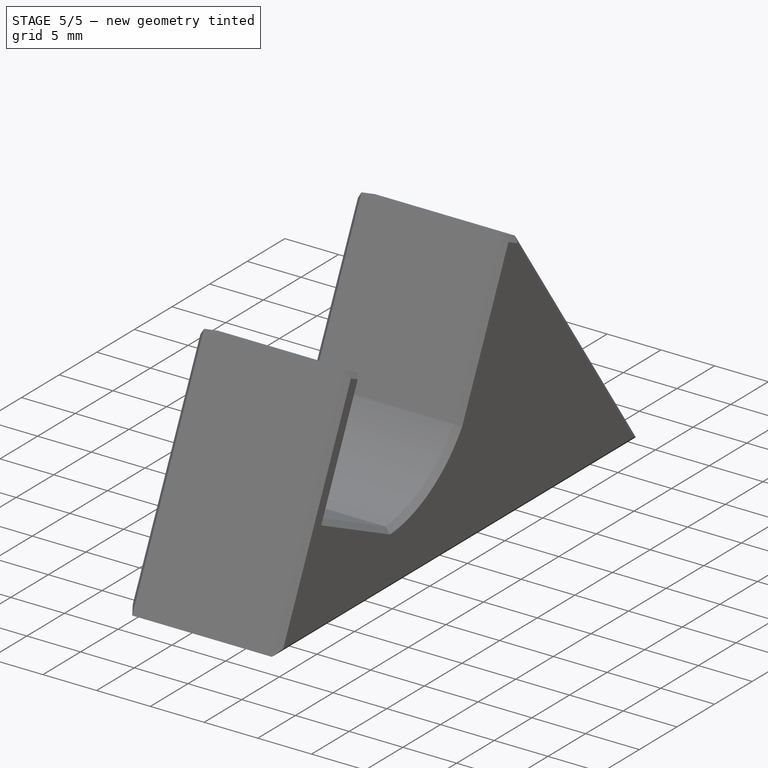
[diagram: stage 5 of 5 — iso view after this stage's code; geometry added in this stage tinted green]
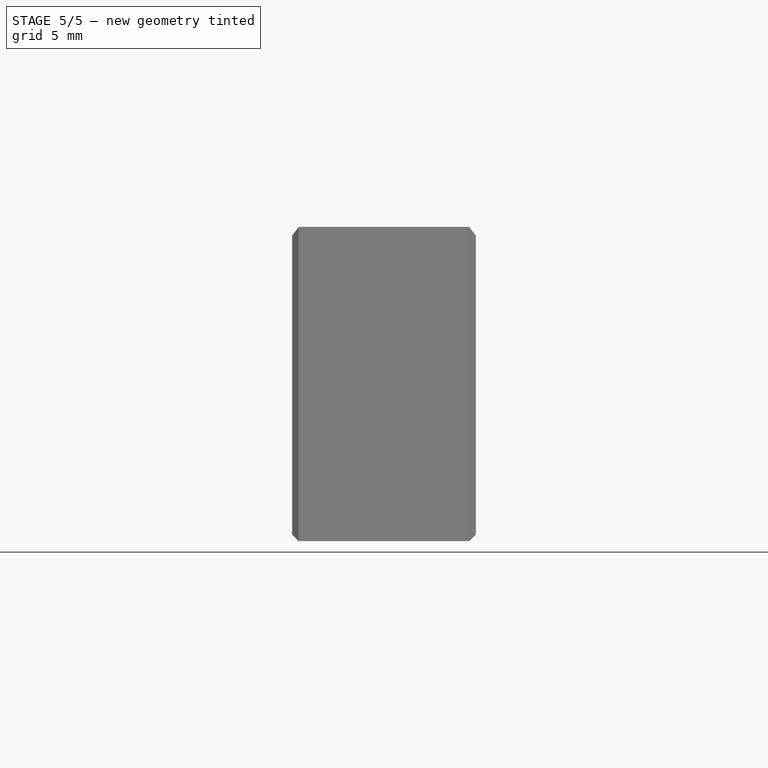
[diagram: stage 5 of 5 — front view after this stage's code; geometry added in this stage tinted green]
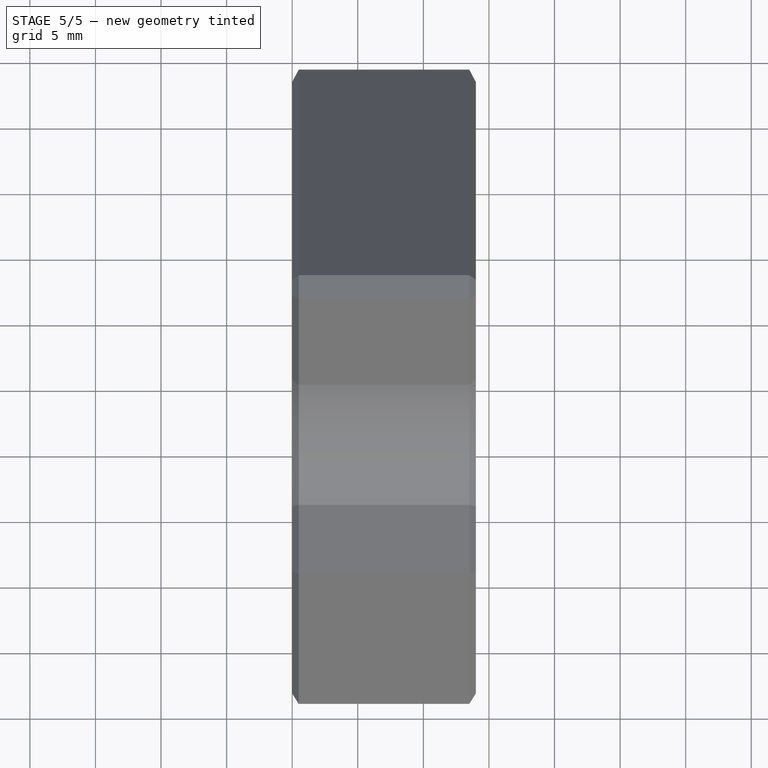
[diagram: stage 5 of 5 — top view after this stage's code; geometry added in this stage tinted green]
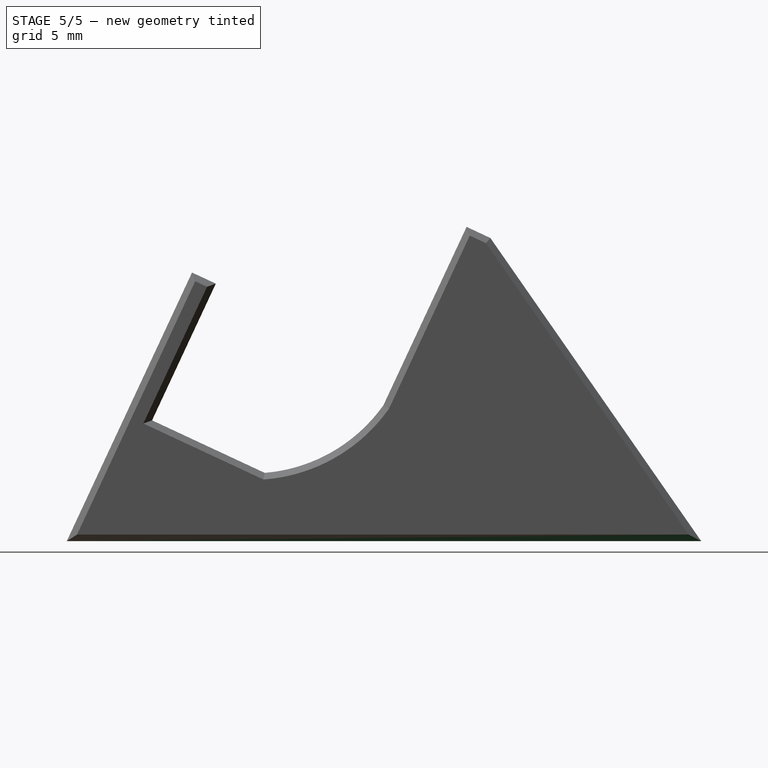
[diagram: stage 5 of 5 — right view after this stage's code; geometry added in this stage tinted green]
FEATURE [PartDesign::Pocket] Pocket001
  BaseFeature = -> Pad002
  Direction = (0,0,-1)
  Length = 0
  Length2 = 5
  Offset = 1
  Placement = pos=(50,0,0) rot=(-1,0,0;0.436332rad)
  Profile = -> Sketch004
  ReferenceAxis = -> Sketch004 [N_Axis]
  Reversed = true
  Suppressed = false
  Type = 3
  UpToFace = -> Pad002 [Face65]
FEATURE [PartDesign::Pad] Pad003
  BaseFeature = -> Pocket001
  Direction = (0,0,1)
  Length = 10
  Length2 = 10
  Offset = 0.5
  Placement = pos=(50,0,0) rot=(-1,0,0;0.436332rad)
  Profile = -> Sketch005
  ReferenceAxis = -> Sketch005 [N_Axis]
  Refine = true
  Reversed = true
  Suppressed = false
  Type = 3
  UpToFace = -> Pocket001 [Face67]
FEATURE [PartDesign::Fillet] Fillet
  Base = -> Pad003 [Edge82]
  BaseFeature = -> Pad003
  Placement = pos=(50,0,0) rot=(-1,0,0;0.436332rad)
  Radius = 1
  SupportTransform = false
  Suppressed = false
  UseAllEdges = false
FEATURE [PartDesign::Chamfer] Chamfer
  Angle = 45
  Base = -> Fillet [Face1,Face12]
  BaseFeature = -> Fillet
  ChamferType = 0
  FlipDirection = false
  Placement = pos=(50,0,0) rot=(-1,0,0;0.436332rad)
  Size = 0.5
  Size2 = 1
  SupportTransform = false
  Suppressed = false
  UseAllEdges = false
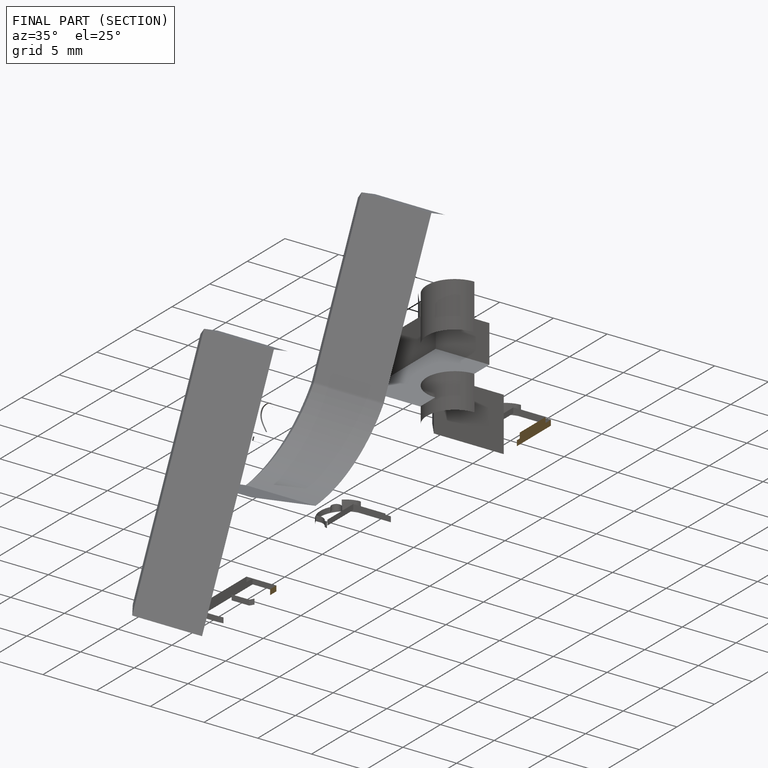
[diagram: finished part — half-section view (interior)]
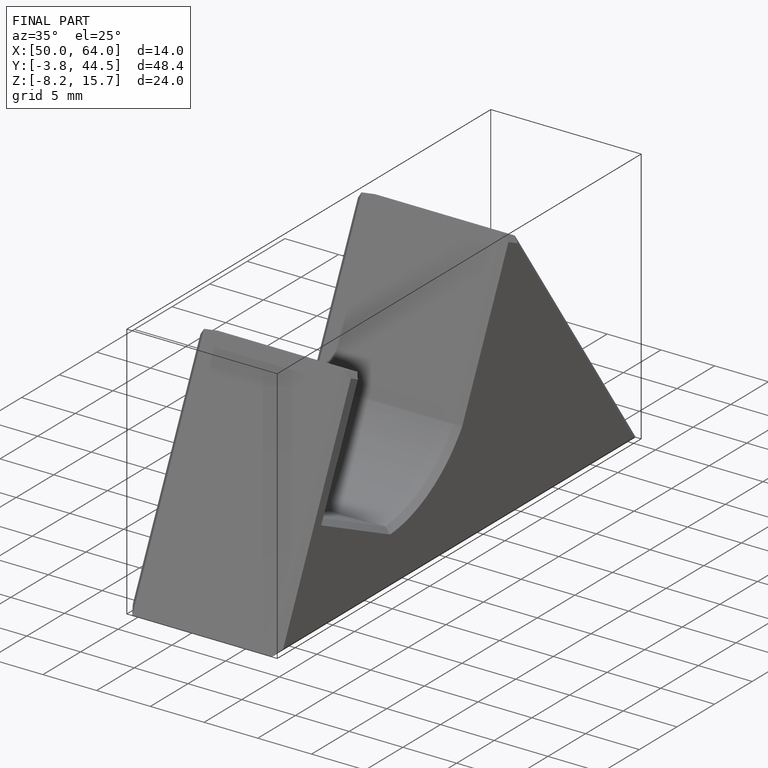
[diagram: finished part — iso view with bounding-box wireframe]
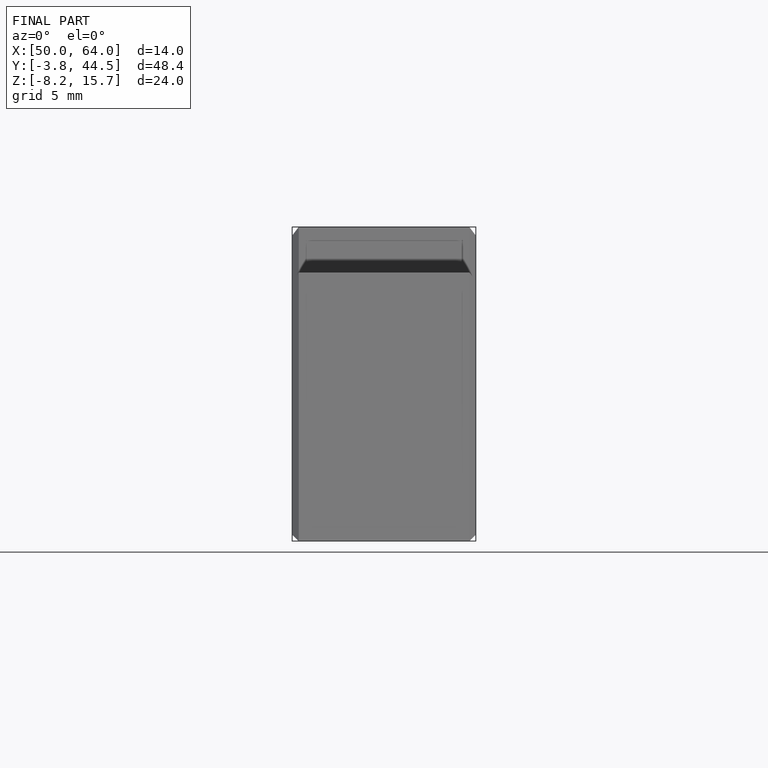
[diagram: finished part — front view with bounding-box wireframe]
